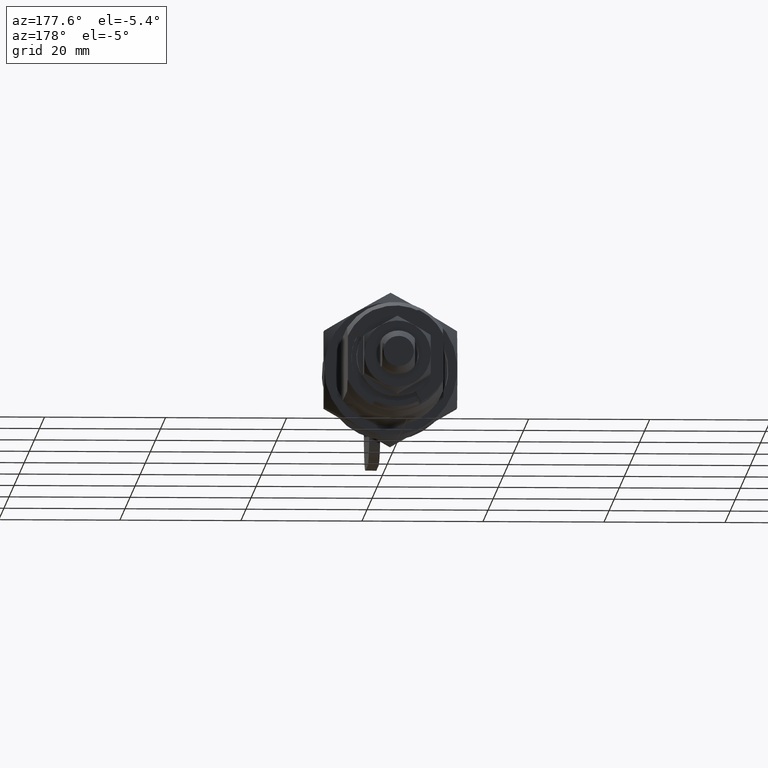
[diagram: clean part render]
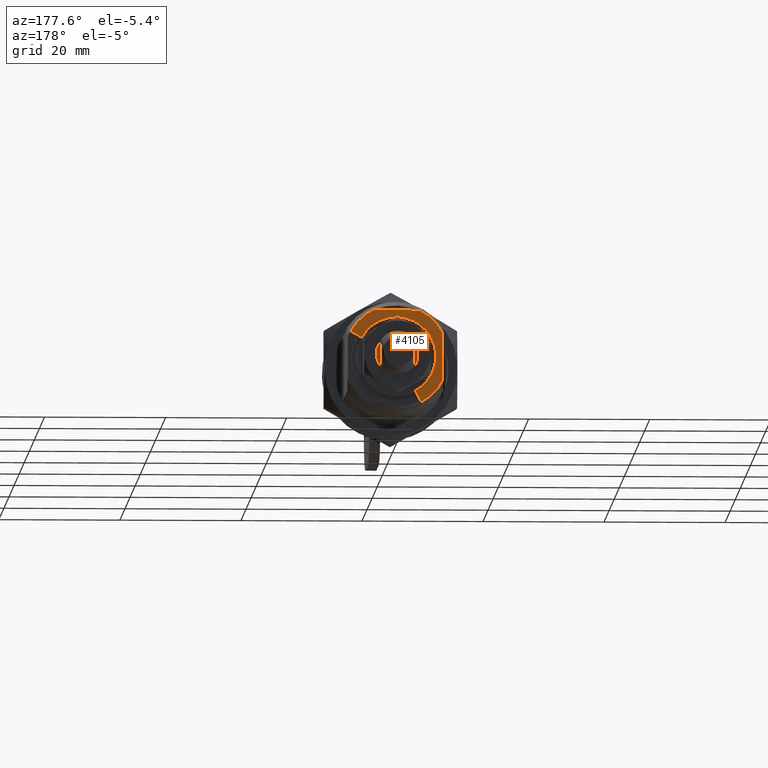
[diagram: same view with one face highlighted and labeled with its STEP entity id]
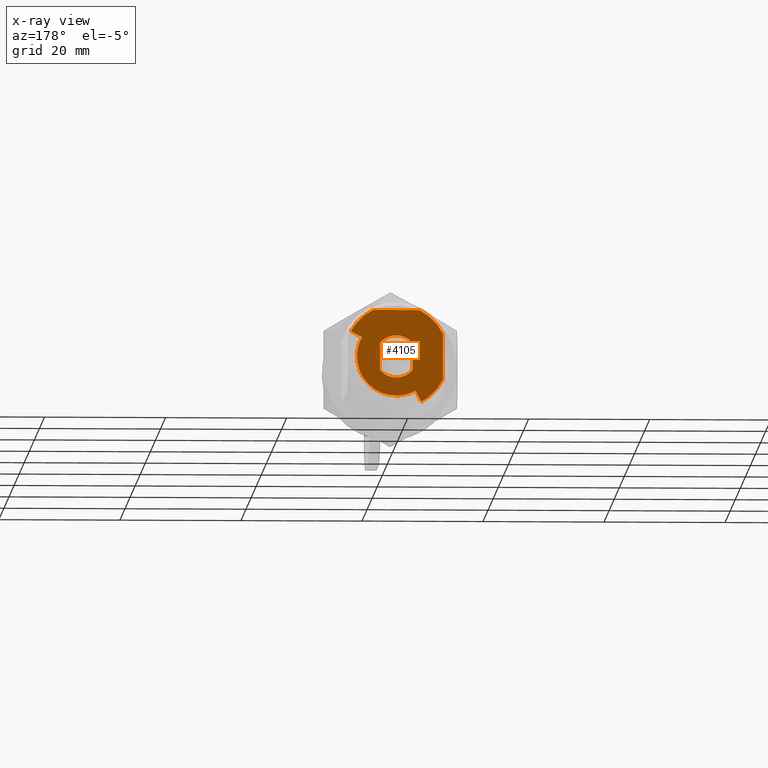
[diagram: x-ray of the same camera — body ghosted, the highlighted face saturated]
A machine part, auxiliary view. The second image highlights one B-rep face of the part: STEP entity #4105.
The next image is the same camera in x-ray: the body ghosted, the highlighted face saturated — about 0% of this face is hidden behind the body in this view.
In plain terms, the highlighted face is a freeform B-spline surface patch.
Its self-contained STEP definition (entity closure, byte-faithful):
#3867=CARTESIAN_POINT('',(35.300002999999897,2.700007843905560,-2.227096235650465));
#3868=VERTEX_POINT('',#3867);
#3869=CARTESIAN_POINT('',(35.300002999999897,2.700007999999910,2.227096000000200));
#3870=VERTEX_POINT('',#3869);
#3871=CARTESIAN_POINT('',(35.300002999999897,2.700007843905560,-2.227096235650465));
#3872=CARTESIAN_POINT('',(35.300002999999897,2.700007999999910,2.227096000000200));
#3873=QUASI_UNIFORM_CURVE('',1,(#3871,#3872),.UNSPECIFIED.,.F.,.U.);
#3874=EDGE_CURVE('',#3868,#3870,#3873,.T.);
#3895=CARTESIAN_POINT('',(35.300002999999897,-2.699992000000000,2.227115000000110));
#3896=VERTEX_POINT('',#3895);
#3897=CARTESIAN_POINT('',(35.300002999999897,-2.699992000000000,-2.227114999999800));
#3898=VERTEX_POINT('',#3897);
#3899=CARTESIAN_POINT('',(35.300002999999897,-2.699992000000000,2.227115000000110));
#3900=CARTESIAN_POINT('',(35.300002999999897,-2.699992000000000,-2.227114999999800));
#3901=QUASI_UNIFORM_CURVE('',1,(#3899,#3900),.UNSPECIFIED.,.F.,.U.);
#3902=EDGE_CURVE('',#3896,#3898,#3901,.T.);
#3934=CARTESIAN_POINT('',(35.300002999999897,-2.699992000000000,-2.227114999999800));
#3935=CARTESIAN_POINT('',(35.300002999999904,-1.650035859276475,-3.500005788603239));
#3936=CARTESIAN_POINT('',(35.300002999999897,0.000012278542823,-3.499999999978463));
#3937=CARTESIAN_POINT('',(35.300002999999904,1.650060416362121,-3.499994211353686));
#3938=CARTESIAN_POINT('',(35.300002999999897,2.700007843905557,-2.227096235650464));
#3946=(BOUNDED_CURVE()B_SPLINE_CURVE(2,(#3934,#3935,#3936,#3937,#3938),.UNSPECIFIED.,.F.,.U.)B_SPLINE_CURVE_WITH_KNOTS((3,2,3),(0.0,0.500000000000000,1.0),.UNSPECIFIED.)CURVE()GEOMETRIC_REPRESENTATION_ITEM()RATIONAL_B_SPLINE_CURVE((1.0,0.904520844558284,1.0,0.904520844558284,1.0))REPRESENTATION_ITEM(''));
#3947=EDGE_CURVE('',#3898,#3868,#3946,.T.);
#3969=CARTESIAN_POINT('',(35.300002999999897,2.700007999999910,2.227096000000200));
#3970=CARTESIAN_POINT('',(35.300002999999890,1.650060642816396,3.499994145088599));
#3971=CARTESIAN_POINT('',(35.300002999999897,0.000012419099330,3.499999999977967));
#3972=CARTESIAN_POINT('',(35.300002999999890,-1.650035804617737,3.500005854867335));
#3973=CARTESIAN_POINT('',(35.300002999999897,-2.699992000000000,2.227115000000110));
#3981=(BOUNDED_CURVE()B_SPLINE_CURVE(2,(#3969,#3970,#3971,#3972,#3973),.UNSPECIFIED.,.F.,.U.)B_SPLINE_CURVE_WITH_KNOTS((3,2,3),(0.0,0.500000000000000,1.0),.UNSPECIFIED.)CURVE()GEOMETRIC_REPRESENTATION_ITEM()RATIONAL_B_SPLINE_CURVE((1.0,0.904520835995809,1.0,0.904520835995809,1.0))REPRESENTATION_ITEM(''));
#3982=EDGE_CURVE('',#3870,#3896,#3981,.T.);
#4002=CARTESIAN_POINT('',(35.300002999999897,-8.282037242107059,-8.282045641706555));
#4003=CARTESIAN_POINT('',(35.300002999999897,8.460321786477630,-8.282045641706555));
#4004=CARTESIAN_POINT('',(35.300002999999897,-8.282037242107059,8.460322186077919));
#4005=CARTESIAN_POINT('',(35.300002999999897,8.460321786477632,8.460322186077919));
#4006=B_SPLINE_SURFACE_WITH_KNOTS('',1,1,((#4002,#4004),(#4003,#4005)),.UNSPECIFIED.,.F.,.F.,.U.,(2,2),(2,2),(0.0,16.742359028584691),(0.0,16.742367827784470),.UNSPECIFIED.);
#4007=CARTESIAN_POINT('',(35.300002999999897,-3.830149631540430,7.699997000000110));
#4008=VERTEX_POINT('',#4007);
#4009=CARTESIAN_POINT('',(35.300002999999897,-7.521713000000201,4.169372000000110));
#4010=VERTEX_POINT('',#4009);
#4011=CARTESIAN_POINT('',(35.300002999999897,-3.830149631540430,7.699997000000110));
#4012=CARTESIAN_POINT('',(35.300002999999897,-6.224972023719364,6.508754556104579));
#4013=CARTESIAN_POINT('',(35.300002999999897,-7.521713000000201,4.169372000000110));
#4021=(BOUNDED_CURVE()B_SPLINE_CURVE(2,(#4011,#4012,#4013),.UNSPECIFIED.,.F.,.U.)CURVE()GEOMETRIC_REPRESENTATION_ITEM()QUASI_UNIFORM_CURVE()RATIONAL_B_SPLINE_CURVE((1.0,0.954882377354895,1.0))REPRESENTATION_ITEM(''));
#4022=EDGE_CURVE('',#4008,#4010,#4021,.T.);
#4023=ORIENTED_EDGE('',*,*,#4022,.T.);
#4024=CARTESIAN_POINT('',(35.300002999999897,-5.685002488982160,3.151308728174170));
#4025=VERTEX_POINT('',#4024);
#4026=CARTESIAN_POINT('',(35.300002999999897,-7.521713000000201,4.169372000000110));
#4027=CARTESIAN_POINT('',(35.300002999999897,-5.685002488982160,3.151308728174170));
#4028=QUASI_UNIFORM_CURVE('',1,(#4026,#4027),.UNSPECIFIED.,.F.,.U.);
#4029=EDGE_CURVE('',#4010,#4025,#4028,.T.);
#4030=ORIENTED_EDGE('',*,*,#4029,.T.);
#4031=CARTESIAN_POINT('',(35.300002999999897,3.151258008626320,-5.685030603529630));
#4032=VERTEX_POINT('',#4031);
#4033=CARTESIAN_POINT('',(35.300002999999897,-5.685002488982153,3.151308728174173));
#4034=CARTESIAN_POINT('',(35.300002999999897,-8.059692998708185,-1.132664256655077));
#4035=CARTESIAN_POINT('',(35.300002999999897,-4.596214580411507,-4.596173574922152));
#4036=CARTESIAN_POINT('',(35.300002999999897,-1.132736162114832,-8.059682893189226));
#4037=CARTESIAN_POINT('',(35.300002999999897,3.151258008626317,-5.685030603529632));
#4045=(BOUNDED_CURVE()B_SPLINE_CURVE(2,(#4033,#4034,#4035,#4036,#4037),.UNSPECIFIED.,.F.,.U.)B_SPLINE_CURVE_WITH_KNOTS((3,2,3),(0.0,0.500000000000000,1.0),.UNSPECIFIED.)CURVE()GEOMETRIC_REPRESENTATION_ITEM()RATIONAL_B_SPLINE_CURVE((1.0,0.798634407155157,1.0,0.798634407155157,1.0))REPRESENTATION_ITEM(''));
#4046=EDGE_CURVE('',#4025,#4032,#4045,.T.);
#4047=ORIENTED_EDGE('',*,*,#4046,.T.);
#4048=CARTESIAN_POINT('',(35.300002999999897,4.169372999999999,-7.521720999999800));
#4049=VERTEX_POINT('',#4048);
#4050=CARTESIAN_POINT('',(35.300002999999897,3.151258008626320,-5.685030603529630));
#4051=CARTESIAN_POINT('',(35.300002999999897,4.169372999999999,-7.521720999999800));
#4052=QUASI_UNIFORM_CURVE('',1,(#4050,#4051),.UNSPECIFIED.,.F.,.U.);
#4053=EDGE_CURVE('',#4032,#4049,#4052,.T.);
#4054=ORIENTED_EDGE('',*,*,#4053,.T.);
#4055=CARTESIAN_POINT('',(35.300002999999897,7.699997000000000,-3.830149631540775));
#4056=VERTEX_POINT('',#4055);
#4057=CARTESIAN_POINT('',(35.300002999999897,4.169372999999999,-7.521720999999800));
#4058=CARTESIAN_POINT('',(35.300002999999897,6.508755636109647,-6.224976770400258));
#4059=CARTESIAN_POINT('',(35.300002999999897,7.699997000000000,-3.830149631540775));
#4067=(BOUNDED_CURVE()B_SPLINE_CURVE(2,(#4057,#4058,#4059),.UNSPECIFIED.,.F.,.U.)CURVE()GEOMETRIC_REPRESENTATION_ITEM()QUASI_UNIFORM_CURVE()RATIONAL_B_SPLINE_CURVE((1.0,0.954882325488452,1.0))REPRESENTATION_ITEM(''));
#4068=EDGE_CURVE('',#4049,#4056,#4067,.T.);
#4069=ORIENTED_EDGE('',*,*,#4068,.T.);
#4070=CARTESIAN_POINT('',(35.300002999999897,7.699997000000000,3.830149631540770));
#4071=VERTEX_POINT('',#4070);
#4072=CARTESIAN_POINT('',(35.300002999999897,7.699997000000000,-3.830149631540775));
#4073=CARTESIAN_POINT('',(35.300002999999897,7.699997000000000,3.830149631540770));
#4074=QUASI_UNIFORM_CURVE('',1,(#4072,#4073),.UNSPECIFIED.,.F.,.U.);
#4075=EDGE_CURVE('',#4056,#4071,#4074,.T.);
#4076=ORIENTED_EDGE('',*,*,#4075,.T.);
#4077=CARTESIAN_POINT('',(35.300002999999897,3.830149631540430,7.699997000000110));
#4078=VERTEX_POINT('',#4077);
#4079=CARTESIAN_POINT('',(35.300002999999897,7.699996999999954,3.830149631540748));
#4080=CARTESIAN_POINT('',(35.300002999999897,6.414489109590464,6.414489109590728));
#4081=CARTESIAN_POINT('',(35.300002999999897,3.830149631540431,7.699997000000111));
#4089=(BOUNDED_CURVE()B_SPLINE_CURVE(2,(#4079,#4080,#4081),.UNSPECIFIED.,.F.,.U.)CURVE()GEOMETRIC_REPRESENTATION_ITEM()QUASI_UNIFORM_CURVE()RATIONAL_B_SPLINE_CURVE((1.0,0.948028473399722,1.0))REPRESENTATION_ITEM(''));
#4090=EDGE_CURVE('',#4071,#4078,#4089,.T.);
#4091=ORIENTED_EDGE('',*,*,#4090,.T.);
#4092=CARTESIAN_POINT('',(35.300002999999897,3.830149631540430,7.699997000000110));
#4093=CARTESIAN_POINT('',(35.300002999999897,-3.830149631540430,7.699997000000110));
#4094=QUASI_UNIFORM_CURVE('',1,(#4092,#4093),.UNSPECIFIED.,.F.,.U.);
#4095=EDGE_CURVE('',#4078,#4008,#4094,.T.);
#4096=ORIENTED_EDGE('',*,*,#4095,.T.);
#4097=EDGE_LOOP('',(#4023,#4030,#4047,#4054,#4069,#4076,#4091,#4096));
#4098=FACE_OUTER_BOUND('',#4097,.T.);
#4099=ORIENTED_EDGE('',*,*,#3982,.F.);
#4100=ORIENTED_EDGE('',*,*,#3874,.F.);
#4101=ORIENTED_EDGE('',*,*,#3947,.F.);
#4102=ORIENTED_EDGE('',*,*,#3902,.F.);
#4103=EDGE_LOOP('',(#4099,#4100,#4101,#4102));
#4104=FACE_BOUND('',#4103,.T.);
#4105=ADVANCED_FACE('',(#4098,#4104),#4006,.T.);